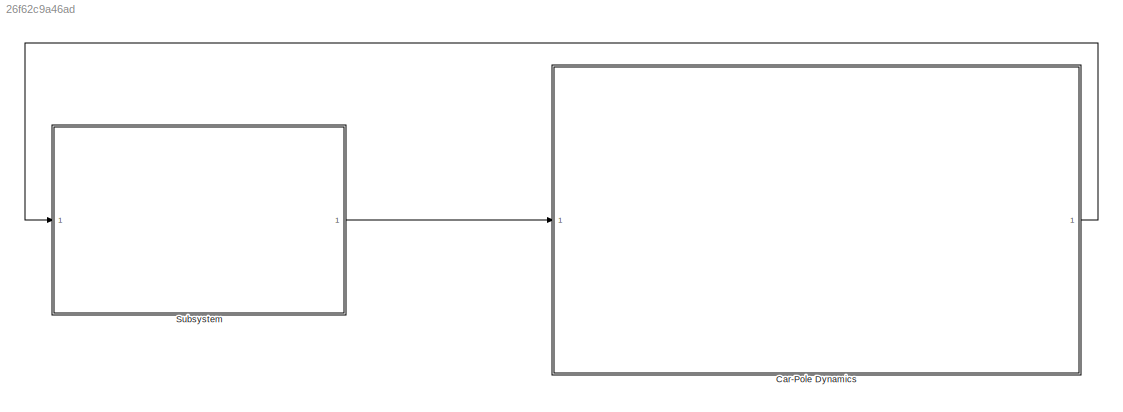
MODEL slx_26f62c9a46ad
KIND model
CONFIG AbsTol = auto
CONFIG EnableMultiTasking = off
CONFIG FixedStep = auto
CONFIG MaxStep = auto
CONFIG MinStep = auto
CONFIG RelTol = 1e-3
CONFIG SampleTimeConstraint = Unconstrained
CONFIG SolverName = daessc
CONFIG StartTime = 0.0
CONFIG StopTime = 10
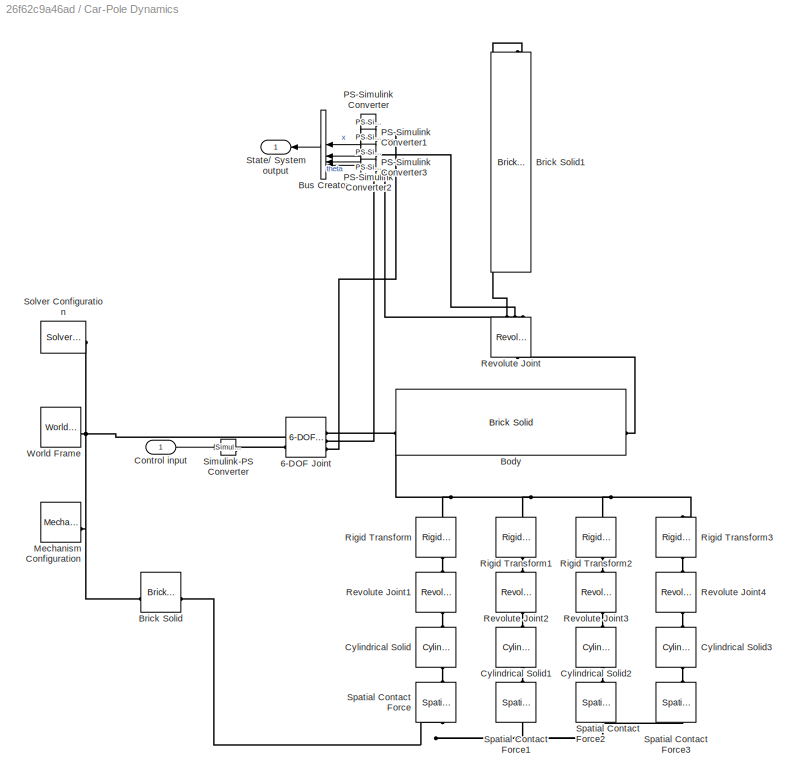
BLOCK [SubSystem] Car-Pole Dynamics
BLOCK [Reference] Car-Pole Dynamics/6-DOF Joint  REF=sm_lib/Joints/6-DOF Joint
  SourceBlock = sm_lib/Joints/6-DOF Joint
  SourceType = 6-DOF Joint
BLOCK [Reference] Car-Pole Dynamics/Body  REF=sm_lib/Body Elements/Brick Solid
  NameLocation = top
  SourceBlock = sm_lib/Body Elements/Brick Solid
  SourceType = Brick Solid
BLOCK [Reference] Car-Pole Dynamics/Brick Solid  REF=sm_lib/Body Elements/Brick Solid
  NameLocation = top
  SourceBlock = sm_lib/Body Elements/Brick Solid
  SourceType = Brick Solid
BLOCK [Reference] Car-Pole Dynamics/Brick Solid1  REF=sm_lib/Body Elements/Brick Solid
  NameLocation = left
  SourceBlock = sm_lib/Body Elements/Brick Solid
  SourceType = Brick Solid
BLOCK [BusCreator] Car-Pole Dynamics/Bus Creator
  DisplayOption = bar
  InheritFromInputs = on
  Inputs = 4
BLOCK [Inport] Car-Pole Dynamics/Control input
BLOCK [Reference] Car-Pole Dynamics/Cylindrical Solid  REF=sm_lib/Body Elements/Cylindrical Solid
  NameLocation = right
  SourceBlock = sm_lib/Body Elements/Cylindrical Solid
  SourceType = Cylindrical Solid
BLOCK [Reference] Car-Pole Dynamics/Cylindrical Solid1  REF=sm_lib/Body Elements/Cylindrical Solid
  NameLocation = right
  SourceBlock = sm_lib/Body Elements/Cylindrical Solid
  SourceType = Cylindrical Solid
BLOCK [Reference] Car-Pole Dynamics/Cylindrical Solid2  REF=sm_lib/Body Elements/Cylindrical Solid
  NameLocation = right
  SourceBlock = sm_lib/Body Elements/Cylindrical Solid
  SourceType = Cylindrical Solid
BLOCK [Reference] Car-Pole Dynamics/Cylindrical Solid3  REF=sm_lib/Body Elements/Cylindrical Solid
  NameLocation = right
  SourceBlock = sm_lib/Body Elements/Cylindrical Solid
  SourceType = Cylindrical Solid
BLOCK [Reference] Car-Pole Dynamics/Mechanism Configuration  REF=sm_lib/Utilities/Mechanism
Configuration
  SourceBlock = sm_lib/Utilities/Mechanism\nConfiguration
  SourceType = Mechanism\nConfiguration
BLOCK [Reference] Car-Pole Dynamics/PS-Simulink Converter  REF=nesl_utility/PS-Simulink
Converter
  SourceBlock = nesl_utility/PS-Simulink\nConverter
  SourceType = PS-Simulink\nConverter
BLOCK [Reference] Car-Pole Dynamics/PS-Simulink Converter1  REF=nesl_utility/PS-Simulink
Converter
  SourceBlock = nesl_utility/PS-Simulink\nConverter
  SourceType = PS-Simulink\nConverter
BLOCK [Reference] Car-Pole Dynamics/PS-Simulink Converter2  REF=nesl_utility/PS-Simulink
Converter
  SourceBlock = nesl_utility/PS-Simulink\nConverter
  SourceType = PS-Simulink\nConverter
BLOCK [Reference] Car-Pole Dynamics/PS-Simulink Converter3  REF=nesl_utility/PS-Simulink
Converter
  SourceBlock = nesl_utility/PS-Simulink\nConverter
  SourceType = PS-Simulink\nConverter
BLOCK [Reference] Car-Pole Dynamics/Revolute Joint  REF=sm_lib/Joints/Revolute Joint
  NameLocation = right
  SourceBlock = sm_lib/Joints/Revolute Joint
  SourceType = Revolute Joint
BLOCK [Reference] Car-Pole Dynamics/Revolute Joint1  REF=sm_lib/Joints/Revolute Joint
  NameLocation = left
  SourceBlock = sm_lib/Joints/Revolute Joint
  SourceType = Revolute Joint
BLOCK [Reference] Car-Pole Dynamics/Revolute Joint2  REF=sm_lib/Joints/Revolute Joint
  NameLocation = left
  SourceBlock = sm_lib/Joints/Revolute Joint
  SourceType = Revolute Joint
BLOCK [Reference] Car-Pole Dynamics/Revolute Joint3  REF=sm_lib/Joints/Revolute Joint
  NameLocation = left
  SourceBlock = sm_lib/Joints/Revolute Joint
  SourceType = Revolute Joint
BLOCK [Reference] Car-Pole Dynamics/Revolute Joint4  REF=sm_lib/Joints/Revolute Joint
  NameLocation = left
  SourceBlock = sm_lib/Joints/Revolute Joint
  SourceType = Revolute Joint
BLOCK [Reference] Car-Pole Dynamics/Rigid Transform  REF=sm_lib/Frames and
Transforms/Rigid
Transform
  NameLocation = left
  SourceBlock = sm_lib/Frames and\nTransforms/Rigid\nTransform
  SourceType = Rigid\nTransform
BLOCK [Reference] Car-Pole Dynamics/Rigid Transform1  REF=sm_lib/Frames and
Transforms/Rigid
Transform
  NameLocation = left
  SourceBlock = sm_lib/Frames and\nTransforms/Rigid\nTransform
  SourceType = Rigid\nTransform
BLOCK [Reference] Car-Pole Dynamics/Rigid Transform2  REF=sm_lib/Frames and
Transforms/Rigid
Transform
  NameLocation = left
  SourceBlock = sm_lib/Frames and\nTransforms/Rigid\nTransform
  SourceType = Rigid\nTransform
BLOCK [Reference] Car-Pole Dynamics/Rigid Transform3  REF=sm_lib/Frames and
Transforms/Rigid
Transform
  NameLocation = left
  SourceBlock = sm_lib/Frames and\nTransforms/Rigid\nTransform
  SourceType = Rigid\nTransform
BLOCK [Reference] Car-Pole Dynamics/Simulink-PS Converter  REF=nesl_utility/Simulink-PS
Converter
  SourceBlock = nesl_utility/Simulink-PS\nConverter
  SourceType = Simulink-PS\nConverter
BLOCK [Reference] Car-Pole Dynamics/Solver Configuration  REF=nesl_utility/Solver
Configuration
  SourceBlock = nesl_utility/Solver\nConfiguration
  SourceType = Solver\nConfiguration
BLOCK [Reference] Car-Pole Dynamics/Spatial Contact Force  REF=sm_lib/Forces and
Torques/Spatial
Contact Force
  NameLocation = right
  SourceBlock = sm_lib/Forces and\nTorques/Spatial\nContact Force
  SourceType = Spatial\nContact Force
BLOCK [Reference] Car-Pole Dynamics/Spatial Contact Force1  REF=sm_lib/Forces and
Torques/Spatial
Contact Force
  NameLocation = right
  SourceBlock = sm_lib/Forces and\nTorques/Spatial\nContact Force
  SourceType = Spatial\nContact Force
BLOCK [Reference] Car-Pole Dynamics/Spatial Contact Force2  REF=sm_lib/Forces and
Torques/Spatial
Contact Force
  NameLocation = right
  SourceBlock = sm_lib/Forces and\nTorques/Spatial\nContact Force
  SourceType = Spatial\nContact Force
BLOCK [Reference] Car-Pole Dynamics/Spatial Contact Force3  REF=sm_lib/Forces and
Torques/Spatial
Contact Force
  NameLocation = right
  SourceBlock = sm_lib/Forces and\nTorques/Spatial\nContact Force
  SourceType = Spatial\nContact Force
BLOCK [Outport] Car-Pole Dynamics/State// System output
BLOCK [Reference] Car-Pole Dynamics/World Frame  REF=sm_lib/Frames and
Transforms/World Frame
  SourceBlock = sm_lib/Frames and\nTransforms/World Frame
  SourceType = World Frame
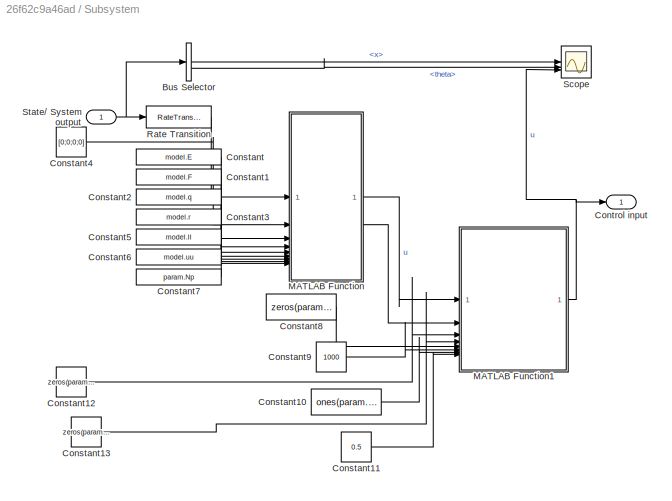
BLOCK [SubSystem] Subsystem
BLOCK [BusSelector] Subsystem/Bus Selector
  OutputSignals = x,theta
BLOCK [Constant] Subsystem/Constant
  Value = model.E
  VectorParams1D = off
BLOCK [Constant] Subsystem/Constant1
  Value = model.F
  VectorParams1D = off
BLOCK [Constant] Subsystem/Constant10
  Value = ones(param.Np,1)*0.01
BLOCK [Constant] Subsystem/Constant11
  Value = 0.5
BLOCK [Constant] Subsystem/Constant12
  Value = zeros(param.Np,param.Np)
BLOCK [Constant] Subsystem/Constant13
  Value = zeros(param.Np,1)
BLOCK [Constant] Subsystem/Constant2
  Value = model.q
  VectorParams1D = off
BLOCK [Constant] Subsystem/Constant3
  Value = model.r
  VectorParams1D = off
BLOCK [Constant] Subsystem/Constant4
  Value = [0;0;0;0]
BLOCK [Constant] Subsystem/Constant5
  Value = model.ll
  VectorParams1D = off
BLOCK [Constant] Subsystem/Constant6
  Value = model.uu
  VectorParams1D = off
BLOCK [Constant] Subsystem/Constant7
  Value = param.Np
  VectorParams1D = off
BLOCK [Constant] Subsystem/Constant8
  Value = zeros(param.Np,1)
BLOCK [Constant] Subsystem/Constant9
  Value = 1000
BLOCK [Outport] Subsystem/Control input
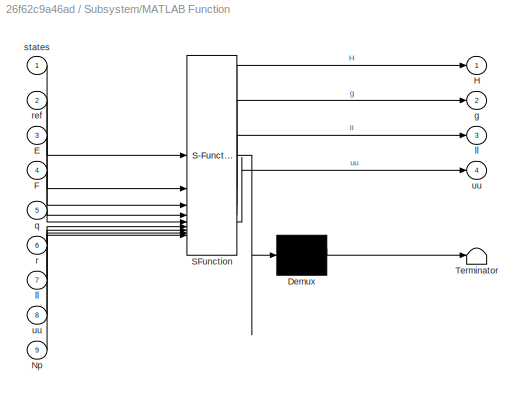
BLOCK [SubSystem] Subsystem/MATLAB Function
  ErrorFcn = Stateflow.Translate.translate
  PermitHierarchicalResolution = ExplicitOnly
  SFBlockType = MATLAB Function
  TreatAsAtomicUnit = on
BLOCK [Demux] Subsystem/MATLAB Function/ Demux 
  Outputs = 1
BLOCK [S-Function] Subsystem/MATLAB Function/ SFunction 
  EnableBusSupport = on
  FunctionName = sf_sfun
  PortCounts = [9 5]
  SFcnIsStateOwnerBlock = off
  SFunctionDeploymentMode = off
  Tag = Stateflow S-Function 2
BLOCK [Terminator] Subsystem/MATLAB Function/ Terminator 
BLOCK [Inport] Subsystem/MATLAB Function/E
  Port = 3
BLOCK [Inport] Subsystem/MATLAB Function/F
  Port = 4
BLOCK [Outport] Subsystem/MATLAB Function/H
BLOCK [Inport] Subsystem/MATLAB Function/Np
  Port = 9
BLOCK [Outport] Subsystem/MATLAB Function/g
  Port = 2
BLOCK [Outport] Subsystem/MATLAB Function/ll
  Port = 3
BLOCK [Inport] Subsystem/MATLAB Function/ll 
  Port = 7
BLOCK [Inport] Subsystem/MATLAB Function/q
  Port = 5
BLOCK [Inport] Subsystem/MATLAB Function/r
  Port = 6
BLOCK [Inport] Subsystem/MATLAB Function/ref
  Port = 2
BLOCK [Inport] Subsystem/MATLAB Function/states
BLOCK [Outport] Subsystem/MATLAB Function/uu
  Port = 4
BLOCK [Inport] Subsystem/MATLAB Function/uu 
  Port = 8
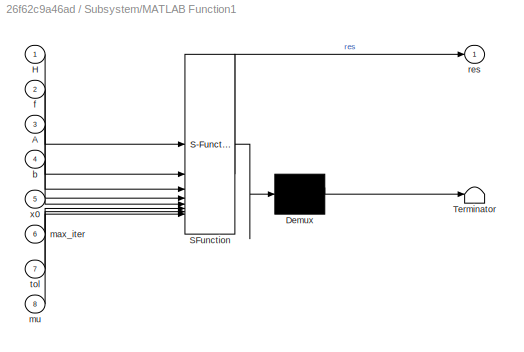
BLOCK [SubSystem] Subsystem/MATLAB Function1
  ErrorFcn = Stateflow.Translate.translate
  PermitHierarchicalResolution = ExplicitOnly
  SFBlockType = MATLAB Function
  TreatAsAtomicUnit = on
BLOCK [Demux] Subsystem/MATLAB Function1/ Demux 
  Outputs = 1
BLOCK [S-Function] Subsystem/MATLAB Function1/ SFunction 
  EnableBusSupport = on
  FunctionName = sf_sfun
  PortCounts = [8 2]
  SFcnIsStateOwnerBlock = off
  SFunctionDeploymentMode = off
  Tag = Stateflow S-Function 1
BLOCK [Terminator] Subsystem/MATLAB Function1/ Terminator 
BLOCK [Inport] Subsystem/MATLAB Function1/A
  Port = 3
BLOCK [Inport] Subsystem/MATLAB Function1/H
BLOCK [Inport] Subsystem/MATLAB Function1/b
  Port = 4
BLOCK [Inport] Subsystem/MATLAB Function1/f
  Port = 2
BLOCK [Inport] Subsystem/MATLAB Function1/max_iter
  Port = 6
BLOCK [Inport] Subsystem/MATLAB Function1/mu
  Port = 8
BLOCK [Outport] Subsystem/MATLAB Function1/res
BLOCK [Inport] Subsystem/MATLAB Function1/tol
  Port = 7
BLOCK [Inport] Subsystem/MATLAB Function1/x0
  Port = 5
BLOCK [RateTransition] Subsystem/Rate Transition
  OutPortSampleTime = 0.1
BLOCK [Scope] Subsystem/Scope
  Floating = off
  NumInputPorts = 3
  ScopeSpecificationString = Simulink.scopes.TimeScopeBlockCfg('CurrentConfiguration', extmgr.ConfigurationSet(extmgr.Configuration('Core','General UI',true,'FigureColor',[1 1 1]),extmgr.Configuration('Core','Source UI',true),extmgr.Configuration('Sources','WiredSimulink',true),extmgr.Configuration('Visuals','Time Domain',true,'SerializedDisplays',{struct('MinYLimReal','-0.75647','MaxYLimReal','0.08405','YLabelReal','','MinYL...<+3002ch>
BLOCK [Inport] Subsystem/State// System output
LINE Car-Pole Dynamics/Bus Creator:1 -> Car-Pole Dynamics/State// System output:1
LINE Car-Pole Dynamics/Control input:1 -> Car-Pole Dynamics/Simulink-PS Converter:1
LINE Car-Pole Dynamics/PS-Simulink Converter1:1 -> Car-Pole Dynamics/Bus Creator:2
LINE Car-Pole Dynamics/PS-Simulink Converter2:1 -> Car-Pole Dynamics/Bus Creator:3
LINE Car-Pole Dynamics/PS-Simulink Converter3:1 -> Car-Pole Dynamics/Bus Creator:4
LINE Car-Pole Dynamics/PS-Simulink Converter:1 -> Car-Pole Dynamics/Bus Creator:1
LINE Car-Pole Dynamics:1 -> Subsystem:1
LINE Subsystem/Bus Selector:1 -> Subsystem/Scope:1
LINE Subsystem/Bus Selector:2 -> Subsystem/Scope:2
LINE Subsystem/Constant10:1 -> Subsystem/MATLAB Function1:7
LINE Subsystem/Constant11:1 -> Subsystem/MATLAB Function1:8
LINE Subsystem/Constant12:1 -> Subsystem/MATLAB Function1:3
LINE Subsystem/Constant13:1 -> Subsystem/MATLAB Function1:4
LINE Subsystem/Constant1:1 -> Subsystem/MATLAB Function:4
LINE Subsystem/Constant2:1 -> Subsystem/MATLAB Function:5
LINE Subsystem/Constant3:1 -> Subsystem/MATLAB Function:6
LINE Subsystem/Constant4:1 -> Subsystem/MATLAB Function:2
LINE Subsystem/Constant5:1 -> Subsystem/MATLAB Function:7
LINE Subsystem/Constant6:1 -> Subsystem/MATLAB Function:8
LINE Subsystem/Constant7:1 -> Subsystem/MATLAB Function:9
LINE Subsystem/Constant8:1 -> Subsystem/MATLAB Function1:5
LINE Subsystem/Constant9:1 -> Subsystem/MATLAB Function1:6
LINE Subsystem/Constant:1 -> Subsystem/MATLAB Function:3
NET Subsystem/MATLAB Function1:1 -> Subsystem/Control input:1, Subsystem/Scope:3
LINE Subsystem/MATLAB Function:1 -> Subsystem/MATLAB Function1:1
LINE Subsystem/MATLAB Function:2 -> Subsystem/MATLAB Function1:2
LINE Subsystem/Rate Transition:1 -> Subsystem/MATLAB Function:1
NET Subsystem/State// System output:1 -> Subsystem/Bus Selector:1, Subsystem/Rate Transition:1
LINE Subsystem:1 -> Car-Pole Dynamics:1
PNET net1: Car-Pole Dynamics/6-DOF Joint:LConn1 -- Car-Pole Dynamics/Brick Solid:RConn1 -- Car-Pole Dynamics/Mechanism Configuration:RConn1 -- Car-Pole Dynamics/Solver Configuration:RConn1 -- Car-Pole Dynamics/World Frame:RConn1
PLINE Car-Pole Dynamics/6-DOF Joint:LConn2 -- Car-Pole Dynamics/Simulink-PS Converter:RConn1
PNET net2: Car-Pole Dynamics/6-DOF Joint:RConn1 -- Car-Pole Dynamics/Body:RConn1 -- Car-Pole Dynamics/Rigid Transform1:LConn1 -- Car-Pole Dynamics/Rigid Transform2:LConn1 -- Car-Pole Dynamics/Rigid Transform3:LConn1 -- Car-Pole Dynamics/Rigid Transform:LConn1
PLINE Car-Pole Dynamics/6-DOF Joint:RConn2 -- Car-Pole Dynamics/PS-Simulink Converter:LConn1
PLINE Car-Pole Dynamics/6-DOF Joint:RConn3 -- Car-Pole Dynamics/PS-Simulink Converter1:LConn1
PLINE Car-Pole Dynamics/Body:LConn1 -- Car-Pole Dynamics/Revolute Joint:LConn1
PLINE Car-Pole Dynamics/Brick Solid1:LConn1 -- Car-Pole Dynamics/Revolute Joint:RConn1
PNET net3: Car-Pole Dynamics/Brick Solid:LConn1 -- Car-Pole Dynamics/Spatial Contact Force1:LConn1 -- Car-Pole Dynamics/Spatial Contact Force2:LConn1 -- Car-Pole Dynamics/Spatial Contact Force3:LConn1 -- Car-Pole Dynamics/Spatial Contact Force:LConn1
PLINE Car-Pole Dynamics/Cylindrical Solid1:LConn1 -- Car-Pole Dynamics/Spatial Contact Force1:RConn1
PLINE Car-Pole Dynamics/Cylindrical Solid1:RConn1 -- Car-Pole Dynamics/Revolute Joint2:RConn1
PLINE Car-Pole Dynamics/Cylindrical Solid2:LConn1 -- Car-Pole Dynamics/Spatial Contact Force2:RConn1
PLINE Car-Pole Dynamics/Cylindrical Solid2:RConn1 -- Car-Pole Dynamics/Revolute Joint3:RConn1
PLINE Car-Pole Dynamics/Cylindrical Solid3:LConn1 -- Car-Pole Dynamics/Spatial Contact Force3:RConn1
PLINE Car-Pole Dynamics/Cylindrical Solid3:RConn1 -- Car-Pole Dynamics/Revolute Joint4:RConn1
PLINE Car-Pole Dynamics/Cylindrical Solid:LConn1 -- Car-Pole Dynamics/Spatial Contact Force:RConn1
PLINE Car-Pole Dynamics/Cylindrical Solid:RConn1 -- Car-Pole Dynamics/Revolute Joint1:RConn1
PLINE Car-Pole Dynamics/PS-Simulink Converter2:LConn1 -- Car-Pole Dynamics/Revolute Joint:RConn2
PLINE Car-Pole Dynamics/PS-Simulink Converter3:LConn1 -- Car-Pole Dynamics/Revolute Joint:RConn3
PLINE Car-Pole Dynamics/Revolute Joint1:LConn1 -- Car-Pole Dynamics/Rigid Transform:RConn1
PLINE Car-Pole Dynamics/Revolute Joint2:LConn1 -- Car-Pole Dynamics/Rigid Transform1:RConn1
PLINE Car-Pole Dynamics/Revolute Joint3:LConn1 -- Car-Pole Dynamics/Rigid Transform2:RConn1
PLINE Car-Pole Dynamics/Revolute Joint4:LConn1 -- Car-Pole Dynamics/Rigid Transform3:RConn1
note: NET lines group one-source signal fan-out (src -> all destinations, sorted); 1:1 wires keep LINE; PNET lines group multi-terminal physical nets as a canonical sorted terminal list (undirected conserving connections); 2-terminal nets keep the pairwise PLINE form
CHART Subsystem/MATLAB Function1 states=1 transitions=1
  STATE_LABEL 'eML_blk_kernel()'
  STATE_LABEL 'SCRIPT:\nfunction res = interior_point_qp(H, f, A, b, x0, max_iter, tol, mu)\n    % 参数说明：\n    % H: 二次项系数矩阵\n    % f: 线性项系数向量\n    % A: 不等式约束的系数矩阵\n    % b: 不等式约束的右侧向量\n    % x0: 初始解向量\n    % max_iter: 最大迭代次数\n    % tol: 收敛容忍度\n    % mu: 中心参数\n\n    n = length(x0);\n    m = size(A, 1);\n\n    % 初始化\n    x = x0;\n    s = ones(m, 1);\n    lambda = ones(m, 1);\n    mu_k = mu * ones(m, 1);\n    iter = 0;\n\n    % 内点法迭代\n   ...<+670ch>'
CHART Subsystem/MATLAB Function states=1 transitions=1
  STATE_LABEL 'eML_blk_kernel()'
  STATE_LABEL "SCRIPT:\nfunction [H,g,ll,uu] = MPCController(states,ref,E,F,q,r,ll,uu,Np)\n\n% ref = [ref;0;0;0];\nrefs = repmat(ref,Np,1);\nH = 2 * ((F.')*q*F + r);\ng = (F.')*q*( E * states- refs );\n\n% options = optimoptions('quadprog','Algorithm','active-set');\n% res = quadprog(H, g, [],[],[],[],ll,uu,zeros(Np,1),options);\n% control = res(1);"
CHART  states=0 transitions=0
CHART  states=0 transitions=0
